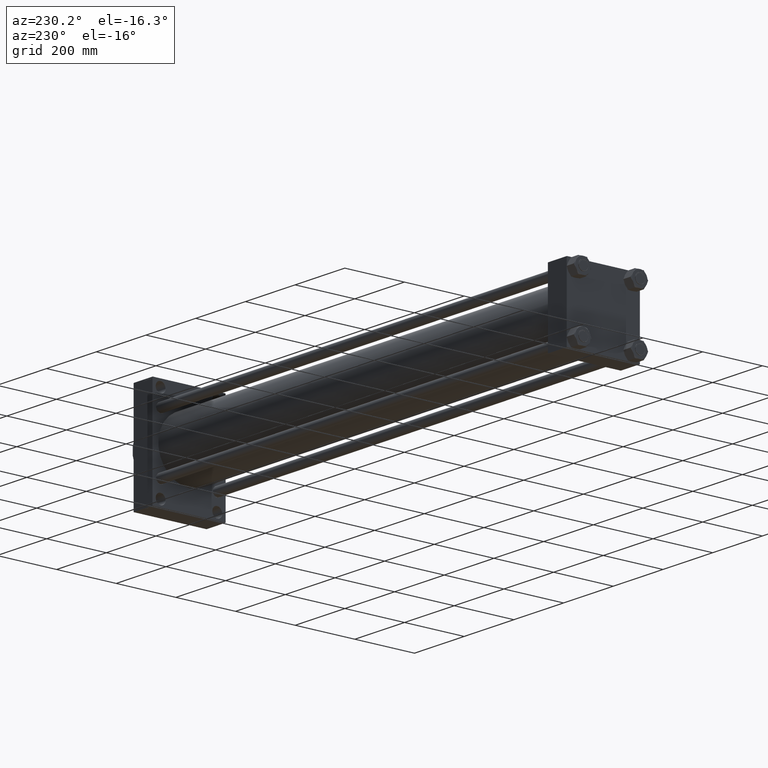
[diagram: clean part render]
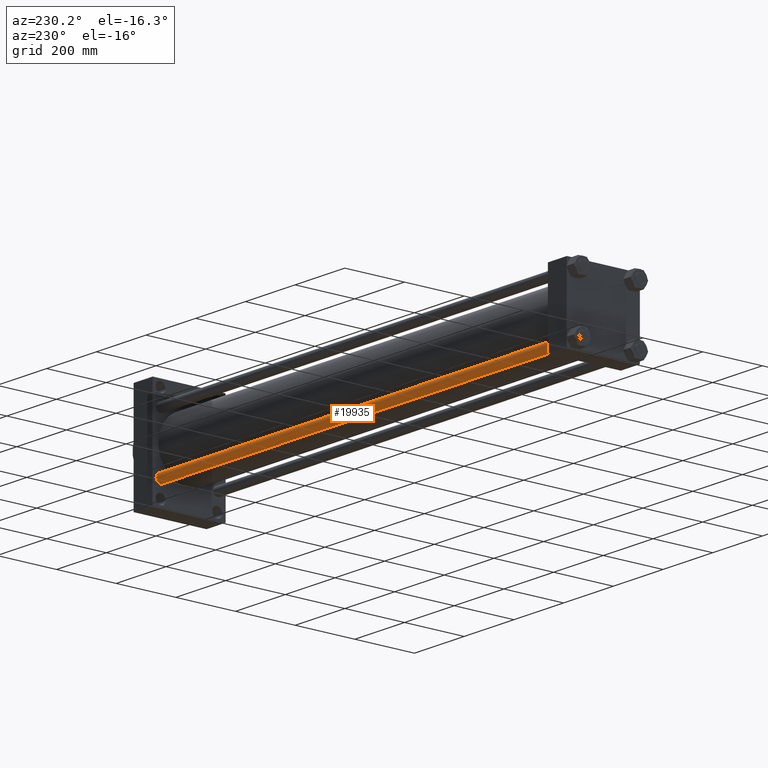
[diagram: same view with one face highlighted and labeled with its STEP entity id]
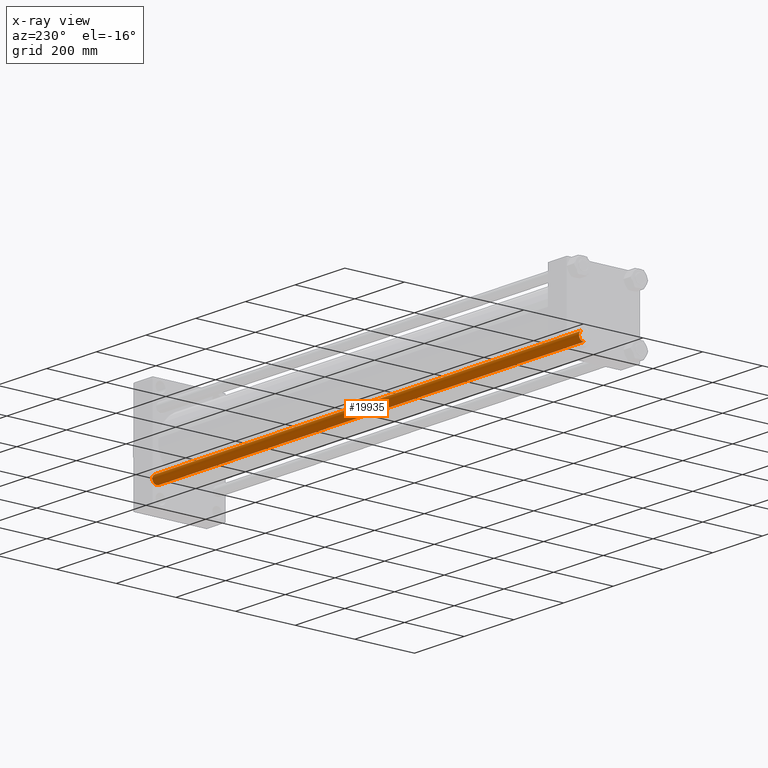
[diagram: x-ray of the same camera — body ghosted, the highlighted face saturated]
A machine part, auxiliary view. The second image highlights one B-rep face of the part: STEP entity #19935.
The next image is the same camera in x-ray: the body ghosted, the highlighted face saturated — about 0% of this face is hidden behind the body in this view.
In plain terms, the highlighted cylindrical surface (edge-blend (fillet) strip) has radius 15 mm, axis along (1, -0, 0).
Its self-contained STEP definition (entity closure, byte-faithful):
#1592 = FACE_OUTER_BOUND ( 'NONE', #7903, .T. ) ;
#1820 = DIRECTION ( 'NONE',  ( -0.000000000000000000, -0.000000000000000000, -1.000000000000000000 ) ) ;
#1849 = CARTESIAN_POINT ( 'NONE',  ( 15.00000000000000000, 1.836970198721029589E-15, 1717.499999999999773 ) ) ;
#2447 = CARTESIAN_POINT ( 'NONE',  ( 15.00000000000000000, 1.836970198721029589E-15, 0.5000000000001669775 ) ) ;
#3557 = EDGE_CURVE ( 'NONE', #33864, #19622, #19534, .T. ) ;
#4841 = DIRECTION ( 'NONE',  ( -0.000000000000000000, -0.000000000000000000, -1.000000000000000000 ) ) ;
#7903 = EDGE_LOOP ( 'NONE', ( #29397, #11487, #29766, #12571 ) ) ;
#8928 = CARTESIAN_POINT ( 'NONE',  ( 0.000000000000000000, 0.000000000000000000, 1717.499999999999773 ) ) ;
#10413 = VECTOR ( 'NONE', #4841, 1000.000000000000000 ) ;
#11043 = VERTEX_POINT ( 'NONE', #2447 ) ;
#11487 = ORIENTED_EDGE ( 'NONE', *, *, #22782, .T. ) ;
#12235 = AXIS2_PLACEMENT_3D ( 'NONE', #13299, #31628, #42445 ) ;
#12571 = ORIENTED_EDGE ( 'NONE', *, *, #3557, .F. ) ;
#13299 = CARTESIAN_POINT ( 'NONE',  ( 0.000000000000000000, 0.000000000000000000, 0.5000000000001669775 ) ) ;
#14476 = AXIS2_PLACEMENT_3D ( 'NONE', #8928, #31580, #34227 ) ;
#19534 = LINE ( 'NONE', #37859, #10413 ) ;
#19622 = VERTEX_POINT ( 'NONE', #40456 ) ;
#19935 = ADVANCED_FACE ( 'NONE', ( #1592 ), #30764, .T. ) ;
#22782 = EDGE_CURVE ( 'NONE', #31542, #11043, #47266, .T. ) ;
#22789 = AXIS2_PLACEMENT_3D ( 'NONE', #23769, #1820, #38449 ) ;
#23769 = CARTESIAN_POINT ( 'NONE',  ( 0.000000000000000000, 0.000000000000000000, 1718.000000000000000 ) ) ;
#26861 = EDGE_CURVE ( 'NONE', #11043, #19622, #38352, .T. ) ;
#28218 = VECTOR ( 'NONE', #36444, 1000.000000000000000 ) ;
#28332 = CIRCLE ( 'NONE', #14476, 15.00000000000000000 ) ;
#28522 = CARTESIAN_POINT ( 'NONE',  ( 15.00000000000000000, 1.836970198721029589E-15, 1718.000000000000000 ) ) ;
#29397 = ORIENTED_EDGE ( 'NONE', *, *, #43140, .T. ) ;
#29766 = ORIENTED_EDGE ( 'NONE', *, *, #26861, .T. ) ;
#30764 = CYLINDRICAL_SURFACE ( 'NONE', #22789, 15.00000000000000000 ) ;
#31542 = VERTEX_POINT ( 'NONE', #1849 ) ;
#31580 = DIRECTION ( 'NONE',  ( 0.000000000000000000, 0.000000000000000000, -1.000000000000000000 ) ) ;
#31628 = DIRECTION ( 'NONE',  ( -0.000000000000000000, -0.000000000000000000, 1.000000000000000000 ) ) ;
#33864 = VERTEX_POINT ( 'NONE', #41336 ) ;
#34227 = DIRECTION ( 'NONE',  ( 1.000000000000000000, 0.000000000000000000, 0.000000000000000000 ) ) ;
#36444 = DIRECTION ( 'NONE',  ( -0.000000000000000000, -0.000000000000000000, -1.000000000000000000 ) ) ;
#37859 = CARTESIAN_POINT ( 'NONE',  ( -15.00000000000000000, 0.000000000000000000, 1718.000000000000000 ) ) ;
#38352 = CIRCLE ( 'NONE', #12235, 15.00000000000000000 ) ;
#38449 = DIRECTION ( 'NONE',  ( -1.000000000000000000, 0.000000000000000000, 0.000000000000000000 ) ) ;
#40456 = CARTESIAN_POINT ( 'NONE',  ( -15.00000000000000000, 0.000000000000000000, 0.5000000000001669775 ) ) ;
#41336 = CARTESIAN_POINT ( 'NONE',  ( -15.00000000000000000, 0.000000000000000000, 1717.499999999999773 ) ) ;
#42445 = DIRECTION ( 'NONE',  ( 1.000000000000000000, 0.000000000000000000, 0.000000000000000000 ) ) ;
#43140 = EDGE_CURVE ( 'NONE', #33864, #31542, #28332, .T. ) ;
#47266 = LINE ( 'NONE', #28522, #28218 ) ;